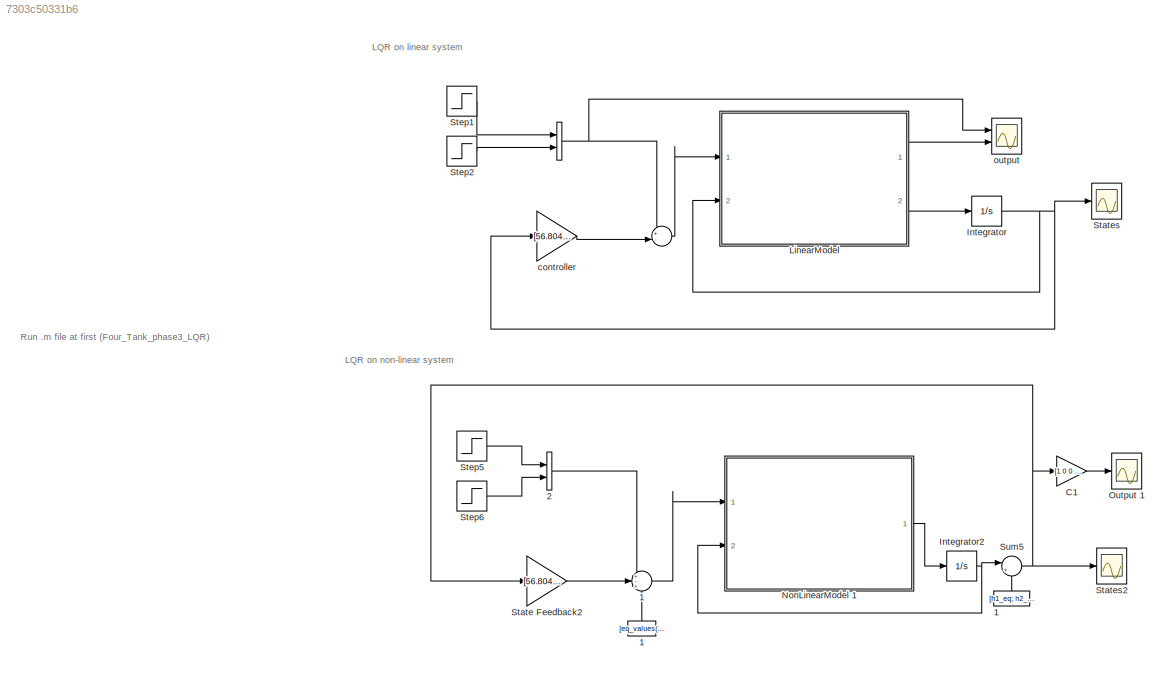
MODEL slx_7303c50331b6
KIND model
CONFIG AbsTol = auto
CONFIG EnableMultiTasking = off
CONFIG FixedStep = auto
CONFIG MaxStep = auto
CONFIG MinStep = auto
CONFIG RelTol = 1e-3
CONFIG SampleTimeConstraint = Unconstrained
CONFIG Solver = VariableStepAuto
CONFIG SolverName = VariableStepAuto
CONFIG StartTime = 0.0
CONFIG StopTime = 400
BLOCK [Sum]  
  Inputs = +-|
  Ports = [2, 1]
BLOCK [Concatenate]    
  Ports = [2, 1]
BLOCK [Constant]                              1
  NameLocation = right
  Value = [h1_eq; h2_eq; eq_values(1);eq_values(2)]
BLOCK [Constant]                         1
  NameLocation = right
  Value = [eq_values(3);eq_values(4)]
BLOCK [Sum]         1
  Inputs = +-+
  Ports = [3, 1]
BLOCK [Concatenate]    2
  Ports = [2, 1]
BLOCK [Gain] C1
  Gain = [1 0 0 0;\n   0 1 0 0]
  Multiplication = Matrix(K*u)
BLOCK [Integrator] Integrator  
  InitialCondition = [0\n;0\n; -0.1943\n; 0.1518]
  Ports = [1, 1]
BLOCK [Integrator] Integrator2
  InitialCondition = [h1_eq;h2_eq;h3_eq;h4_eq]
  Ports = [1, 1]
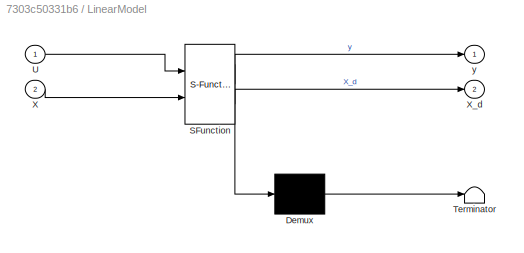
BLOCK [SubSystem] LinearModel
  ErrorFcn = Stateflow.Translate.translate
  PermitHierarchicalResolution = ExplicitOnly
  Ports = [2, 2]
  RequestExecContextInheritance = off
  SFBlockType = MATLAB Function
  TreatAsAtomicUnit = on
BLOCK [Demux] LinearModel/ Demux 
  Outputs = 1
  Ports = [1, 1]
BLOCK [S-Function] LinearModel/ SFunction 
  EnableBusSupport = on
  FunctionName = sf_sfun
  PortCounts = [2 3]
  Ports = [2, 3]
  SFcnIsStateOwnerBlock = off
  SFunctionDeploymentMode = off
  Tag = Stateflow S-Function 2
BLOCK [Terminator] LinearModel/ Terminator 
BLOCK [Inport] LinearModel/U
BLOCK [Inport] LinearModel/X
  Port = 2
BLOCK [Outport] LinearModel/X_d
  Port = 2
BLOCK [Outport] LinearModel/y
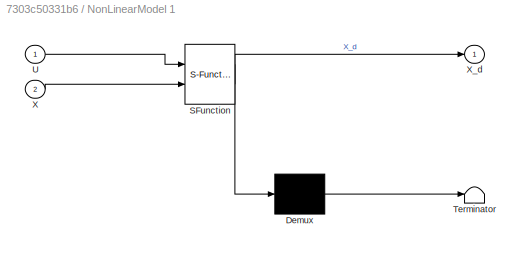
BLOCK [SubSystem] NonLinearModel 1
  ErrorFcn = Stateflow.Translate.translate
  PermitHierarchicalResolution = ExplicitOnly
  Ports = [2, 1]
  RequestExecContextInheritance = off
  SFBlockType = MATLAB Function
  TreatAsAtomicUnit = on
BLOCK [Demux] NonLinearModel 1/ Demux 
  Outputs = 1
  Ports = [1, 1]
BLOCK [S-Function] NonLinearModel 1/ SFunction 
  EnableBusSupport = on
  FunctionName = sf_sfun
  PortCounts = [2 2]
  Ports = [2, 2]
  SFcnIsStateOwnerBlock = off
  SFunctionDeploymentMode = off
  Tag = Stateflow S-Function 1
BLOCK [Terminator] NonLinearModel 1/ Terminator 
BLOCK [Inport] NonLinearModel 1/U
BLOCK [Inport] NonLinearModel 1/X
  Port = 2
BLOCK [Outport] NonLinearModel 1/X_d
BLOCK [Scope] Output 1
  Floating = off
  NumInputPorts = 1
  Ports = [1]
  ScopeSpecificationString = Simulink.scopes.TimeScopeBlockCfg('CurrentConfiguration', extmgr.ConfigurationSet(extmgr.Configuration('Core','General UI',true,'FigureColor',[1 1 1]),extmgr.Configuration('Core','Source UI',true),extmgr.Configuration('Sources','WiredSimulink',true,'DataLoggingVariableName','ScopeData3','DataLoggingSaveFormat','StructureWithTime','DataLoggingDecimation','1','DataLoggingDecimateData',true),extmgr.C...<+3114ch>
BLOCK [Gain] State Feedback2
  Gain = [56.8046  139.4053  -70.4297   74.0215;138.5844   98.5390   68.5509  -55.1763]
  Multiplication = Matrix(K*u)
BLOCK [Scope] States
  Floating = off
  NumInputPorts = 1
  Ports = [1]
  ScopeSpecificationString = Simulink.scopes.TimeScopeBlockCfg('CurrentConfiguration', extmgr.ConfigurationSet(extmgr.Configuration('Core','General UI',true,'FigureColor',[1 1 1]),extmgr.Configuration('Core','Source UI',true),extmgr.Configuration('Sources','WiredSimulink',true,'DataLoggingVariableName','ScopeData1','DataLoggingSaveFormat','StructureWithTime','DataLoggingDecimation','1','DataLoggingDecimateData',true),extmgr.C...<+3252ch>
BLOCK [Scope] States2
  Floating = off
  NumInputPorts = 1
  Ports = [1]
  ScopeSpecificationString = Simulink.scopes.TimeScopeBlockCfg('CurrentConfiguration', extmgr.ConfigurationSet(extmgr.Configuration('Core','General UI',true,'FigureColor',[1 1 1]),extmgr.Configuration('Core','Source UI',true),extmgr.Configuration('Sources','WiredSimulink',true,'DataLoggingVariableName','ScopeData4','DataLoggingSaveFormat','StructureWithTime','DataLoggingDecimation','1','DataLoggingDecimateData',true),extmgr.C...<+3226ch>
BLOCK [Step] Step1
  SampleTime = 0
BLOCK [Step] Step2
  SampleTime = 0
BLOCK [Step] Step5
  SampleTime = 0
BLOCK [Step] Step6
  SampleTime = 0
BLOCK [Sum] Sum5
  Inputs = |+-
  Ports = [2, 1]
BLOCK [Gain] controller
  Gain = [56.8046  139.4053  -70.4297   74.0215;138.5844   98.5390   68.5509  -55.1763]
  Multiplication = Matrix(K*u)
BLOCK [Scope] output
  Floating = off
  NumInputPorts = 2
  Ports = [2]
  ScopeSpecificationString = Simulink.scopes.TimeScopeBlockCfg('CurrentConfiguration', extmgr.ConfigurationSet(extmgr.Configuration('Core','General UI',true,'FigureColor',[1 1 1]),extmgr.Configuration('Core','Source UI',true),extmgr.Configuration('Sources','WiredSimulink',true,'DataLoggingSaveFormat','StructureWithTime','DataLoggingDecimation','1','DataLoggingDecimateData',true),extmgr.Configuration('Visuals','Time Domain',tr...<+3178ch>
ANNOTATION (root): Run .m file at first (Four_Tank_phase3_LQR)
ANNOTATION (root): LQR on linear system
ANNOTATION (root): LQR on non-linear system
LINE                              1:1 -> Sum5:2
LINE                         1:1 ->         1:3
LINE         1:1 -> NonLinearModel 1:1
LINE    2:1 ->         1:1
NET    :1 ->  :1, output:1
LINE  :1 -> LinearModel:1
LINE C1:1 -> Output 1:1
NET Integrator  :1 -> LinearModel:2, States:1, controller:1
NET Integrator2:1 -> NonLinearModel 1:2, Sum5:1
LINE LinearModel:1 -> output:2
LINE LinearModel:2 -> Integrator  :1
LINE NonLinearModel 1:1 -> Integrator2:1
LINE State Feedback2:1 ->         1:2
LINE Step1:1 ->    :1
LINE Step2:1 ->    :2
LINE Step5:1 ->    2:1
LINE Step6:1 ->    2:2
NET Sum5:1 -> C1:1, State Feedback2:1, States2:1
LINE controller:1 ->  :2
note: NET lines group one-source signal fan-out (src -> all destinations, sorted); 1:1 wires keep LINE
CHART NonLinearModel 1 states=1 transitions=1
  STATE_LABEL 'eML_blk_kernel()'
  STATE_LABEL 'SCRIPT:\nfunction X_d   = non_linear_plant(U,X)\nArea = [730 730 730 730]; % area of the tanks in cm^2\na = [2.10 2.14 2.2 2.3];  % area of the drain in cm^2\ny = [0.3 0.35];           % y(1) = Ratio of flow in tank1 to flow in tank4\n                          % y(2) = Ratio of flow in tank2 to flow in tank3                   \nk = [7.45 7.30];          % pump proportionality constants in cm^2/s\ng = 981...<+460ch>'
CHART LinearModel states=1 transitions=1
  STATE_LABEL 'eML_blk_kernel()'
  STATE_LABEL 'SCRIPT:\nfunction [y,X_d]  = linear_plant(U,X)\n% A = [ -0.0189,  0.029,      0, 0.00306,       0,       0;\n%        0, -0.029, 0.0065,       0,       0,       0;\n%        0,      0, -0.476,       0,       0,       0;\n%        0,      0,      0,    -0.5,       0,       0;\n%        0,      0, 0.0035,       0, -0.0191,  0.0349;\n%        0,      0,      0, 0.00714,       0, -0.0349];\n% \n% B =[0,     0;...<+498ch>'
CHART  states=0 transitions=0
CHART  states=0 transitions=0
